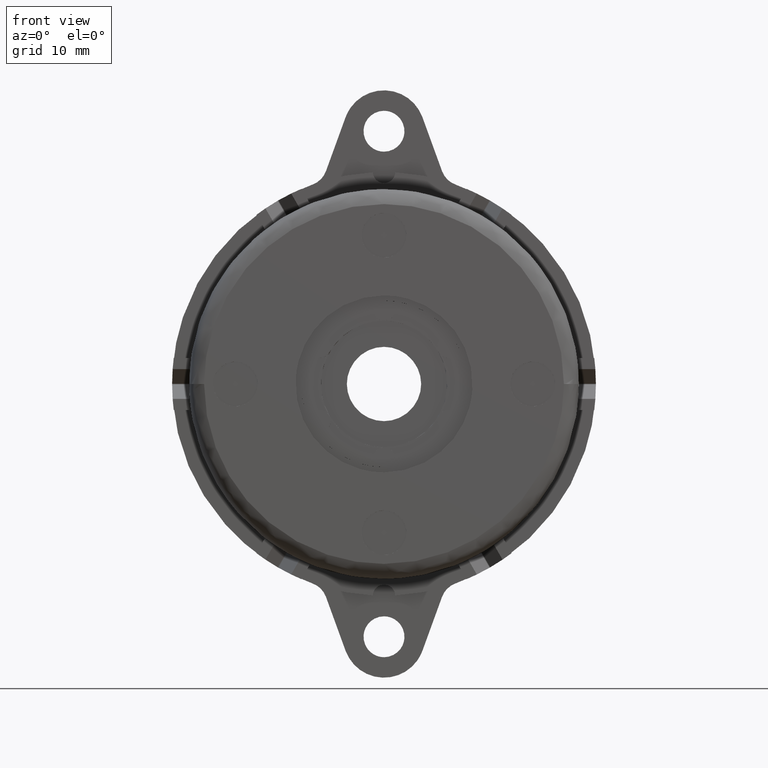
[diagram: clean part render]
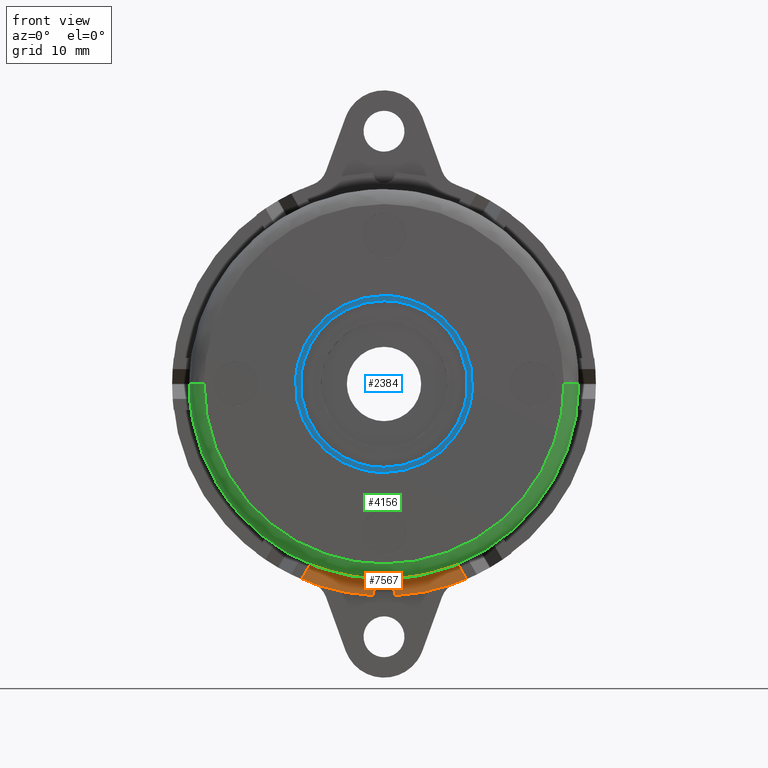
[diagram: same view with three faces highlighted in distinct colors, each labeled with its STEP entity id]
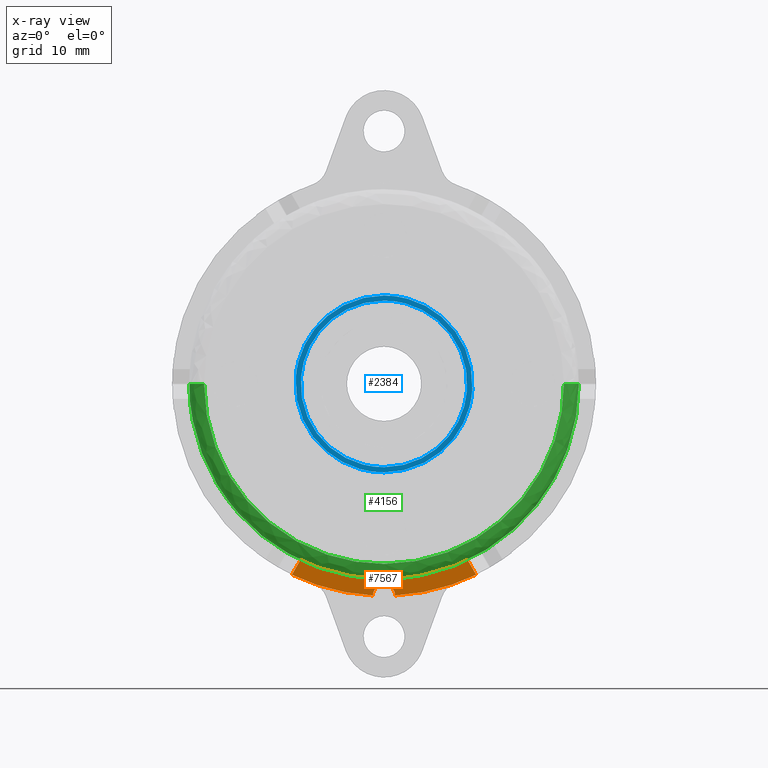
[diagram: x-ray of the same camera — body ghosted, the three highlighted faces saturated]
A machine part, front view with three faces highlighted in distinct colors.
The next image is the same camera in x-ray (body ghosted, the three faces saturated) — at least one of them is partly hidden behind the body in this view.
Their STEP definitions:

[orange] entity #7567 — the highlighted face is a freeform B-spline surface patch.
#4355=CARTESIAN_POINT('',(1.499480519464934,-2.600010000000000,-28.460526315789451));
#4356=VERTEX_POINT('',#4355);
#4362=CARTESIAN_POINT('',(-1.499480519464946,-2.600010000000000,-28.460526315789451));
#4363=VERTEX_POINT('',#4362);
#4364=CARTESIAN_POINT('',(1.499480519464934,-2.600010000000000,-28.460526315789451));
#4365=CARTESIAN_POINT('',(1.496639312021033,-2.600010000000003,-28.351978449641631));
#4366=CARTESIAN_POINT('',(1.465606769445489,-2.600009999999994,-28.123463027306421));
#4367=CARTESIAN_POINT('',(1.357394332335425,-2.600010000000000,-27.839539706699568));
#4368=CARTESIAN_POINT('',(1.191033898370668,-2.600010000000006,-27.572561642185690));
#4369=CARTESIAN_POINT('',(0.959007181719689,-2.600009999999995,-27.323572592889160));
#4370=CARTESIAN_POINT('',(0.648120216077521,-2.600010000000015,-27.130811368646398));
#4371=CARTESIAN_POINT('',(0.325222958896232,-2.600009999999973,-27.026113534350539));
#4372=CARTESIAN_POINT('',(0.024379741314766,-2.600010000000040,-26.989627696928359));
#4373=CARTESIAN_POINT('',(-0.290056057325672,-2.600009999999972,-27.016248192938310));
#4374=CARTESIAN_POINT('',(-0.649358874468094,-2.600010000000012,-27.127979699041319));
#4375=CARTESIAN_POINT('',(-0.979067970145927,-2.600010000000008,-27.337949791808420));
#4376=CARTESIAN_POINT('',(-1.229198908710485,-2.600009999999985,-27.619757487262280));
#4377=CARTESIAN_POINT('',(-1.430089755960258,-2.600010000000020,-27.979672265821289));
#4378=CARTESIAN_POINT('',(-1.494603640321683,-2.600009999999974,-28.267491283354040));
#4379=CARTESIAN_POINT('',(-1.499480519464946,-2.600010000000000,-28.460526315789451));
#4380=B_SPLINE_CURVE_WITH_KNOTS('',3,(#4364,#4365,#4366,#4367,#4368,#4369,#4370,#4371,#4372,#4373,#4374,#4375,#4376,#4377,#4378,#4379),.UNSPECIFIED.,.F.,.U.,(4,1,1,1,1,1,1,1,1,1,1,1,1,4),(0.000000207083993,0.325762080975194,0.687776833089852,0.904985714570897,1.266991606041070,1.701412286126422,1.990987871851397,2.280591120978121,2.606359424416873,2.932139699561272,3.402757491185001,3.764774035838587,4.054356986116648,4.633544906061252),.UNSPECIFIED.);
#4381=EDGE_CURVE('',#4356,#4363,#4380,.T.);
#7502=CARTESIAN_POINT('',(-13.630631460912140,-2.600010000000000,-28.699969736847059));
#7503=CARTESIAN_POINT('',(-13.630631460912140,-2.600010000000000,-23.427420496913509));
#7504=CARTESIAN_POINT('',(13.630632125703571,-2.600010000000000,-28.699969736847059));
#7505=CARTESIAN_POINT('',(13.630632125703571,-2.600010000000000,-23.427420496913509));
#7506=B_SPLINE_SURFACE_WITH_KNOTS('',1,1,((#7502,#7504),(#7503,#7505)),.UNSPECIFIED.,.F.,.F.,.U.,(2,2),(2,2),(0.0,5.272549239933554),(0.0,27.261263586615708),.UNSPECIFIED.);
#7507=ORIENTED_EDGE('',*,*,#4381,.F.);
#7508=CARTESIAN_POINT('',(12.392609790845301,-2.600010000000000,-25.664629796119151));
#7509=VERTEX_POINT('',#7508);
#7510=CARTESIAN_POINT('',(1.499480519464935,-2.600010000000000,-28.460526315789469));
#7511=CARTESIAN_POINT('',(7.227393648221824,-2.600010000000000,-28.158743627076749));
#7512=CARTESIAN_POINT('',(12.392609790845290,-2.600010000000000,-25.664629796119129));
#7520=(BOUNDED_CURVE()B_SPLINE_CURVE(2,(#7510,#7511,#7512),.UNSPECIFIED.,.F.,.U.)CURVE()GEOMETRIC_REPRESENTATION_ITEM()QUASI_UNIFORM_CURVE()RATIONAL_B_SPLINE_CURVE((1.0,0.980342760978141,1.0))REPRESENTATION_ITEM(''));
#7521=EDGE_CURVE('',#4356,#7509,#7520,.T.);
#7522=ORIENTED_EDGE('',*,*,#7521,.T.);
#7523=CARTESIAN_POINT('',(11.239199197552059,-2.600010000000000,-23.666864046547150));
#7524=VERTEX_POINT('',#7523);
#7525=CARTESIAN_POINT('',(11.239199197552059,-2.600010000000000,-23.666864046547150));
#7526=CARTESIAN_POINT('',(12.392609790845301,-2.600010000000000,-25.664629796119151));
#7527=QUASI_UNIFORM_CURVE('',1,(#7525,#7526),.UNSPECIFIED.,.F.,.U.);
#7528=EDGE_CURVE('',#7524,#7509,#7527,.T.);
#7529=ORIENTED_EDGE('',*,*,#7528,.F.);
#7530=CARTESIAN_POINT('',(-11.239199197552059,-2.600010000000000,-23.666864046547150));
#7531=VERTEX_POINT('',#7530);
#7532=CARTESIAN_POINT('',(-11.239199197552059,-2.600010000000000,-23.666864046547150));
#7533=CARTESIAN_POINT('',(1.859624E-015,-2.600010000000000,-29.004267157177072));
#7534=CARTESIAN_POINT('',(11.239199197552059,-2.600010000000000,-23.666864046547150));
#7542=(BOUNDED_CURVE()B_SPLINE_CURVE(2,(#7532,#7533,#7534),.UNSPECIFIED.,.F.,.U.)CURVE()GEOMETRIC_REPRESENTATION_ITEM()QUASI_UNIFORM_CURVE()RATIONAL_B_SPLINE_CURVE((1.0,0.903315387146251,1.0))REPRESENTATION_ITEM(''));
#7543=EDGE_CURVE('',#7531,#7524,#7542,.T.);
#7544=ORIENTED_EDGE('',*,*,#7543,.F.);
#7545=CARTESIAN_POINT('',(-12.392609790845260,-2.600010000000000,-25.664629796119151));
#7546=VERTEX_POINT('',#7545);
#7547=CARTESIAN_POINT('',(-12.392609790845260,-2.600010000000000,-25.664629796119151));
#7548=CARTESIAN_POINT('',(-11.239199197552059,-2.600010000000000,-23.666864046547150));
#7549=QUASI_UNIFORM_CURVE('',1,(#7547,#7548),.UNSPECIFIED.,.F.,.U.);
#7550=EDGE_CURVE('',#7546,#7531,#7549,.T.);
#7551=ORIENTED_EDGE('',*,*,#7550,.F.);
#7552=CARTESIAN_POINT('',(-12.392609790845251,-2.600010000000000,-25.664629796119140));
#7553=CARTESIAN_POINT('',(-7.227393648221802,-2.600009999999999,-28.158743627076742));
#7554=CARTESIAN_POINT('',(-1.499480519464947,-2.600010000000000,-28.460526315789469));
#7562=(BOUNDED_CURVE()B_SPLINE_CURVE(2,(#7552,#7553,#7554),.UNSPECIFIED.,.F.,.U.)CURVE()GEOMETRIC_REPRESENTATION_ITEM()QUASI_UNIFORM_CURVE()RATIONAL_B_SPLINE_CURVE((1.0,0.980342760978141,1.0))REPRESENTATION_ITEM(''));
#7563=EDGE_CURVE('',#7546,#4363,#7562,.T.);
#7564=ORIENTED_EDGE('',*,*,#7563,.T.);
#7565=EDGE_LOOP('',(#7507,#7522,#7529,#7544,#7551,#7564));
#7566=FACE_OUTER_BOUND('',#7565,.T.);
#7567=ADVANCED_FACE('',(#7566),#7506,.F.);

[blue] entity #2384 — the highlighted face is a freeform B-spline surface patch.
#2083=CARTESIAN_POINT('',(-11.165474137806060,-13.0,0.878741872215033));
#2084=VERTEX_POINT('',#2083);
#2090=CARTESIAN_POINT('',(0.0,-13.0,-11.199999999999999));
#2091=VERTEX_POINT('',#2090);
#2092=CARTESIAN_POINT('',(-11.165474137806058,-12.999999999999998,0.878741872215030));
#2093=CARTESIAN_POINT('',(-11.199999999999996,-13.000000000000002,0.440049198517630));
#2094=CARTESIAN_POINT('',(-11.199999999999999,-13.0,0.0));
#2095=CARTESIAN_POINT('',(-11.199999999999999,-13.0,-11.199999999999999));
#2096=CARTESIAN_POINT('',(0.0,-13.0,-11.199999999999999));
#2104=(BOUNDED_CURVE()B_SPLINE_CURVE(2,(#2092,#2093,#2094,#2095,#2096),.UNSPECIFIED.,.F.,.U.)B_SPLINE_CURVE_WITH_KNOTS((3,2,3),(0.736331300631797,0.750000000000000,1.0),.UNSPECIFIED.)CURVE()GEOMETRIC_REPRESENTATION_ITEM()RATIONAL_B_SPLINE_CURVE((0.969723356169792,0.983986122580215,1.0,0.707106781186547,1.0))REPRESENTATION_ITEM(''));
#2105=EDGE_CURVE('',#2084,#2091,#2104,.T.);
#2107=CARTESIAN_POINT('',(11.165474137806060,-13.0,-0.878741872215034));
#2108=VERTEX_POINT('',#2107);
#2109=CARTESIAN_POINT('',(0.0,-13.0,-11.199999999999999));
#2110=CARTESIAN_POINT('',(10.353173506513160,-13.0,-11.199999999999999));
#2111=CARTESIAN_POINT('',(11.165474137806061,-13.000000000000002,-0.878741872215034));
#2119=(BOUNDED_CURVE()B_SPLINE_CURVE(2,(#2109,#2110,#2111),.UNSPECIFIED.,.F.,.U.)B_SPLINE_CURVE_WITH_KNOTS((3,3),(0.0,0.236331300631797),.UNSPECIFIED.)CURVE()GEOMETRIC_REPRESENTATION_ITEM()RATIONAL_B_SPLINE_CURVE((1.0,0.723120658606333,0.969723356169791))REPRESENTATION_ITEM(''));
#2120=EDGE_CURVE('',#2091,#2108,#2119,.T.);
#2150=CARTESIAN_POINT('',(0.0,-13.0,11.199999999999999));
#2151=VERTEX_POINT('',#2150);
#2152=CARTESIAN_POINT('',(11.165474137806061,-13.000000000000002,-0.878741872215034));
#2153=CARTESIAN_POINT('',(11.199999999999998,-13.000000000000002,-0.440049198517632));
#2154=CARTESIAN_POINT('',(11.199999999999999,-13.0,0.0));
#2155=CARTESIAN_POINT('',(11.199999999999999,-13.0,11.199999999999999));
#2156=CARTESIAN_POINT('',(0.0,-13.0,11.199999999999999));
#2164=(BOUNDED_CURVE()B_SPLINE_CURVE(2,(#2152,#2153,#2154,#2155,#2156),.UNSPECIFIED.,.F.,.U.)B_SPLINE_CURVE_WITH_KNOTS((3,2,3),(0.236331300631797,0.250000000000000,0.500000000000000),.UNSPECIFIED.)CURVE()GEOMETRIC_REPRESENTATION_ITEM()RATIONAL_B_SPLINE_CURVE((0.969723356169791,0.983986122580214,1.0,0.707106781186547,1.0))REPRESENTATION_ITEM(''));
#2165=EDGE_CURVE('',#2108,#2151,#2164,.T.);
#2167=CARTESIAN_POINT('',(0.0,-13.0,11.199999999999999));
#2168=CARTESIAN_POINT('',(-10.353173506513164,-13.000000000000002,11.199999999999998));
#2169=CARTESIAN_POINT('',(-11.165474137806058,-12.999999999999998,0.878741872215030));
#2177=(BOUNDED_CURVE()B_SPLINE_CURVE(2,(#2167,#2168,#2169),.UNSPECIFIED.,.F.,.U.)B_SPLINE_CURVE_WITH_KNOTS((3,3),(0.500000000000000,0.736331300631797),.UNSPECIFIED.)CURVE()GEOMETRIC_REPRESENTATION_ITEM()RATIONAL_B_SPLINE_CURVE((1.0,0.723120658606333,0.969723356169792))REPRESENTATION_ITEM(''));
#2178=EDGE_CURVE('',#2151,#2084,#2177,.T.);
#2307=CARTESIAN_POINT('',(-13.088517108979330,-13.0,-13.088809953870980));
#2308=CARTESIAN_POINT('',(13.088516683402171,-13.0,-13.088809953870980));
#2309=CARTESIAN_POINT('',(-13.088517108979330,-13.0,13.088810592236729));
#2310=CARTESIAN_POINT('',(13.088516683402171,-13.0,13.088810592236729));
#2311=B_SPLINE_SURFACE_WITH_KNOTS('',1,1,((#2307,#2309),(#2308,#2310)),.UNSPECIFIED.,.F.,.F.,.U.,(2,2),(2,2),(0.0,26.177033792381501),(0.0,26.177620546107711),.UNSPECIFIED.);
#2312=CARTESIAN_POINT('',(0.0,-13.0,-11.900000000000000));
#2313=VERTEX_POINT('',#2312);
#2314=CARTESIAN_POINT('',(11.877804947614489,-13.0,-0.726463781776172));
#2315=VERTEX_POINT('',#2314);
#2316=CARTESIAN_POINT('',(0.0,-13.0,-11.900000000000000));
#2317=CARTESIAN_POINT('',(11.194415263017426,-13.0,-11.899999999999753));
#2318=CARTESIAN_POINT('',(11.877804947614488,-13.000000000000004,-0.726463781776172));
#2326=(BOUNDED_CURVE()B_SPLINE_CURVE(2,(#2316,#2317,#2318),.UNSPECIFIED.,.F.,.U.)B_SPLINE_CURVE_WITH_KNOTS((3,3),(0.0,0.239333163274216),.UNSPECIFIED.)CURVE()GEOMETRIC_REPRESENTATION_ITEM()RATIONAL_B_SPLINE_CURVE((1.0,0.719603757759237,0.976072472523955))REPRESENTATION_ITEM(''));
#2327=EDGE_CURVE('',#2313,#2315,#2326,.T.);
#2328=ORIENTED_EDGE('',*,*,#2327,.T.);
#2329=CARTESIAN_POINT('',(0.0,-13.0,11.900000000000000));
#2330=VERTEX_POINT('',#2329);
#2331=CARTESIAN_POINT('',(11.877804947614488,-13.000000000000004,-0.726463781776172));
#2332=CARTESIAN_POINT('',(11.899999999992049,-12.999999999999996,-0.363570944507858));
#2333=CARTESIAN_POINT('',(11.899999999992181,-13.0,4.783251E-013));
#2334=CARTESIAN_POINT('',(11.899999999996206,-13.0,11.900000000000231));
#2335=CARTESIAN_POINT('',(0.0,-13.0,11.900000000000000));
#2343=(BOUNDED_CURVE()B_SPLINE_CURVE(2,(#2331,#2332,#2333,#2334,#2335),.UNSPECIFIED.,.F.,.U.)B_SPLINE_CURVE_WITH_KNOTS((3,2,3),(0.239333163274216,0.250000000000000,0.500000000000000),.UNSPECIFIED.)CURVE()GEOMETRIC_REPRESENTATION_ITEM()RATIONAL_B_SPLINE_CURVE((0.976072472523955,0.987503023427310,1.0,0.707106781186547,1.0))REPRESENTATION_ITEM(''));
#2344=EDGE_CURVE('',#2315,#2330,#2343,.T.);
#2345=ORIENTED_EDGE('',*,*,#2344,.T.);
#2346=CARTESIAN_POINT('',(-11.877804947614489,-13.0,0.726463781776169));
#2347=VERTEX_POINT('',#2346);
#2348=CARTESIAN_POINT('',(0.0,-13.0,11.900000000000000));
#2349=CARTESIAN_POINT('',(-11.194415263017426,-13.0,11.899999999999752));
#2350=CARTESIAN_POINT('',(-11.877804947614488,-13.000000000000004,0.726463781776169));
#2358=(BOUNDED_CURVE()B_SPLINE_CURVE(2,(#2348,#2349,#2350),.UNSPECIFIED.,.F.,.U.)B_SPLINE_CURVE_WITH_KNOTS((3,3),(0.500000000000000,0.739333163274216),.UNSPECIFIED.)CURVE()GEOMETRIC_REPRESENTATION_ITEM()RATIONAL_B_SPLINE_CURVE((1.0,0.719603757759237,0.976072472523955))REPRESENTATION_ITEM(''));
#2359=EDGE_CURVE('',#2330,#2347,#2358,.T.);
#2360=ORIENTED_EDGE('',*,*,#2359,.T.);
#2361=CARTESIAN_POINT('',(-11.877804947614488,-13.000000000000004,0.726463781776169));
#2362=CARTESIAN_POINT('',(-11.899999999992049,-12.999999999999996,0.363570944507855));
#2363=CARTESIAN_POINT('',(-11.899999999992181,-13.0,-4.815571E-013));
#2364=CARTESIAN_POINT('',(-11.899999999996206,-13.0,-11.900000000000233));
#2365=CARTESIAN_POINT('',(0.0,-13.0,-11.900000000000000));
#2373=(BOUNDED_CURVE()B_SPLINE_CURVE(2,(#2361,#2362,#2363,#2364,#2365),.UNSPECIFIED.,.F.,.U.)B_SPLINE_CURVE_WITH_KNOTS((3,2,3),(0.739333163274216,0.750000000000000,1.0),.UNSPECIFIED.)CURVE()GEOMETRIC_REPRESENTATION_ITEM()RATIONAL_B_SPLINE_CURVE((0.976072472523955,0.987503023427310,1.0,0.707106781186547,1.0))REPRESENTATION_ITEM(''));
#2374=EDGE_CURVE('',#2347,#2313,#2373,.T.);
#2375=ORIENTED_EDGE('',*,*,#2374,.T.);
#2376=EDGE_LOOP('',(#2328,#2345,#2360,#2375));
#2377=FACE_OUTER_BOUND('',#2376,.T.);
#2378=ORIENTED_EDGE('',*,*,#2178,.F.);
#2379=ORIENTED_EDGE('',*,*,#2165,.F.);
#2380=ORIENTED_EDGE('',*,*,#2120,.F.);
#2381=ORIENTED_EDGE('',*,*,#2105,.F.);
#2382=EDGE_LOOP('',(#2378,#2379,#2380,#2381));
#2383=FACE_BOUND('',#2382,.T.);
#2384=ADVANCED_FACE('',(#2377,#2383),#2311,.T.);

[green] entity #4156 — the highlighted face is a freeform B-spline surface patch.
#3880=CARTESIAN_POINT('',(-24.200000000614182,-13.800000000000001,-1.770490E-015));
#3881=VERTEX_POINT('',#3880);
#3895=CARTESIAN_POINT('',(0.0,-13.800000000000001,-24.199999999999999));
#3896=VERTEX_POINT('',#3895);
#3897=CARTESIAN_POINT('',(-24.200000000614182,-13.800000000000001,-1.770490E-015));
#3898=CARTESIAN_POINT('',(-24.200000000307082,-13.799999999999999,-24.199999999999996));
#3899=CARTESIAN_POINT('',(0.0,-13.800000000000001,-24.199999999999999));
#3907=(BOUNDED_CURVE()B_SPLINE_CURVE(2,(#3897,#3898,#3899),.UNSPECIFIED.,.F.,.U.)B_SPLINE_CURVE_WITH_KNOTS((3,3),(0.250000000000000,0.500000000000000),.UNSPECIFIED.)CURVE()GEOMETRIC_REPRESENTATION_ITEM()RATIONAL_B_SPLINE_CURVE((1.0,0.707106781186548,1.0))REPRESENTATION_ITEM(''));
#3908=EDGE_CURVE('',#3881,#3896,#3907,.T.);
#3910=CARTESIAN_POINT('',(24.200000000614182,-13.800000000000001,2.634884E-016));
#3911=VERTEX_POINT('',#3910);
#3912=CARTESIAN_POINT('',(0.0,-13.800000000000001,-24.199999999999999));
#3913=CARTESIAN_POINT('',(24.200000000307082,-13.799999999999999,-24.199999999999996));
#3914=CARTESIAN_POINT('',(24.200000000614182,-13.800000000000001,2.634884E-016));
#3922=(BOUNDED_CURVE()B_SPLINE_CURVE(2,(#3912,#3913,#3914),.UNSPECIFIED.,.F.,.U.)B_SPLINE_CURVE_WITH_KNOTS((3,3),(0.500000000000000,0.750000000000000),.UNSPECIFIED.)CURVE()GEOMETRIC_REPRESENTATION_ITEM()RATIONAL_B_SPLINE_CURVE((1.0,0.707106781186548,1.0))REPRESENTATION_ITEM(''));
#3923=EDGE_CURVE('',#3896,#3911,#3922,.T.);
#4002=CARTESIAN_POINT('',(26.199999999999999,-11.800000000098020,5.284502E-015));
#4003=VERTEX_POINT('',#4002);
#4004=CARTESIAN_POINT('',(24.200000000614178,-13.800000000000001,5.269768E-016));
#4005=CARTESIAN_POINT('',(26.199999999901983,-13.799999999385816,2.816352E-015));
#4006=CARTESIAN_POINT('',(26.199999999999989,-11.800000000098017,3.463576E-015));
#4014=(BOUNDED_CURVE()B_SPLINE_CURVE(2,(#4004,#4005,#4006),.UNSPECIFIED.,.F.,.U.)B_SPLINE_CURVE_WITH_KNOTS((3,3),(-1.736413120754341,-0.276558718065689),.UNSPECIFIED.)CURVE()GEOMETRIC_REPRESENTATION_ITEM()RATIONAL_B_SPLINE_CURVE((0.888510408948525,0.626638727302599,0.883897567120881))REPRESENTATION_ITEM(''));
#4015=EDGE_CURVE('',#3911,#4003,#4014,.T.);
#4047=CARTESIAN_POINT('',(-26.199999999999999,-11.800000000098020,-1.770216E-015));
#4048=VERTEX_POINT('',#4047);
#4062=CARTESIAN_POINT('',(-24.200000000614171,-13.800000000000002,-3.540981E-015));
#4063=CARTESIAN_POINT('',(-26.199999999901966,-13.799999999385818,-3.497002E-015));
#4064=CARTESIAN_POINT('',(-26.199999999999999,-11.800000000098025,-3.540432E-015));
#4072=(BOUNDED_CURVE()B_SPLINE_CURVE(2,(#4062,#4063,#4064),.UNSPECIFIED.,.F.,.U.)B_SPLINE_CURVE_WITH_KNOTS((3,3),(-1.736413120754343,-0.276558718065691),.UNSPECIFIED.)CURVE()GEOMETRIC_REPRESENTATION_ITEM()RATIONAL_B_SPLINE_CURVE((0.888510408948525,0.626638727302599,0.883897567120880))REPRESENTATION_ITEM(''));
#4073=EDGE_CURVE('',#3881,#4048,#4072,.T.);
#4078=CARTESIAN_POINT('',(24.061298849070688,-13.795184700906377,0.672675420448867));
#4079=CARTESIAN_POINT('',(24.061298849070678,-13.795184700906381,0.338296456843512));
#4080=CARTESIAN_POINT('',(24.061298849070685,-13.795184700906379,-24.061298849070667));
#4081=CARTESIAN_POINT('',(2.946562E-015,-13.795184700906375,-24.061298849070685));
#4082=CARTESIAN_POINT('',(-24.061298849070667,-13.795184700906379,-24.061298849070685));
#4083=CARTESIAN_POINT('',(-24.061298849070674,-13.795184700906379,0.338296456843513));
#4084=CARTESIAN_POINT('',(-24.061298849070681,-13.795184700906372,0.672675420448876));
#4085=CARTESIAN_POINT('',(26.355478543839929,-13.954671370966850,0.736813200393517));
#4086=CARTESIAN_POINT('',(26.355478543839933,-13.954671370966851,0.370552108002291));
#4087=CARTESIAN_POINT('',(26.355478543839943,-13.954671370966851,-26.355478543839919));
#4088=CARTESIAN_POINT('',(3.227509E-015,-13.954671370966851,-26.355478543839933));
#4089=CARTESIAN_POINT('',(-26.355478543839919,-13.954671370966851,-26.355478543839943));
#4090=CARTESIAN_POINT('',(-26.355478543839926,-13.954671370966851,0.370552108002293));
#4091=CARTESIAN_POINT('',(-26.355478543839926,-13.954671370966851,0.736813200393527));
#4092=CARTESIAN_POINT('',(26.195132611118510,-11.660551572072686,0.732330451212468));
#4093=CARTESIAN_POINT('',(26.195132611118503,-11.660551572072681,0.368297680207300));
#4094=CARTESIAN_POINT('',(26.195132611118506,-11.660551572072682,-26.195132611118506));
#4095=CARTESIAN_POINT('',(3.207873E-015,-11.660551572072679,-26.195132611118510));
#4096=CARTESIAN_POINT('',(-26.195132611118506,-11.660551572072682,-26.195132611118506));
#4097=CARTESIAN_POINT('',(-26.195132611118503,-11.660551572072679,0.368297680207302));
#4098=CARTESIAN_POINT('',(-26.195132611118503,-11.660551572072684,0.732330451212478));
#4106=(BOUNDED_SURFACE()B_SPLINE_SURFACE(2,2,((#4078,#4085,#4092),(#4079,#4086,#4093),(#4080,#4087,#4094),(#4081,#4088,#4095),(#4082,#4089,#4096),(#4083,#4090,#4097),(#4084,#4091,#4098)),.UNSPECIFIED.,.F.,.F.,.U.)B_SPLINE_SURFACE_WITH_KNOTS((3,1,2,1,3),(3,3),(0.0,0.868030335654944,44.269547118403068,87.671063901151200,88.539094236806150),(0.0,3.645454353994036),.UNSPECIFIED.)GEOMETRIC_REPRESENTATION_ITEM()RATIONAL_B_SPLINE_SURFACE(((0.926697838400259,0.606435486919035,0.921564728292852),(0.921332230155912,0.602924207283492,0.916228840909793),(0.647686209694202,0.423848945870745,0.644098584373797),(0.915966621911565,0.599412927647948,0.910892953526734),(0.647686209694202,0.423848945870745,0.644098584373797),(0.921332230155912,0.602924207283492,0.916228840909793),(0.926697838400259,0.606435486919036,0.921564728292852)))REPRESENTATION_ITEM('')SURFACE());
#4107=ORIENTED_EDGE('',*,*,#3908,.F.);
#4108=ORIENTED_EDGE('',*,*,#4073,.T.);
#4109=CARTESIAN_POINT('',(-22.434830887205919,-11.800000000069669,-13.532123375966020));
#4110=VERTEX_POINT('',#4109);
#4111=CARTESIAN_POINT('',(-22.434830887205926,-11.800000000069669,-13.532123375966023));
#4112=CARTESIAN_POINT('',(-26.199999999999136,-11.800000000086385,-7.289870777438365));
#4113=CARTESIAN_POINT('',(-26.199999999999999,-11.800000000098020,-1.770216E-015));
#4121=(BOUNDED_CURVE()B_SPLINE_CURVE(2,(#4111,#4112,#4113),.UNSPECIFIED.,.F.,.U.)B_SPLINE_CURVE_WITH_KNOTS((3,3),(0.661793393350524,0.750000000000000),.UNSPECIFIED.)CURVE()GEOMETRIC_REPRESENTATION_ITEM()RATIONAL_B_SPLINE_CURVE((0.866241560394162,0.896659532231292,1.0))REPRESENTATION_ITEM(''));
#4122=EDGE_CURVE('',#4110,#4048,#4121,.T.);
#4123=ORIENTED_EDGE('',*,*,#4122,.F.);
#4124=CARTESIAN_POINT('',(0.0,-11.800000000000001,-26.199999999999999));
#4125=VERTEX_POINT('',#4124);
#4126=CARTESIAN_POINT('',(0.0,-11.800000000000001,-26.199999999999999));
#4127=CARTESIAN_POINT('',(-14.793887648107598,-11.800000000029677,-26.199999999999484));
#4128=CARTESIAN_POINT('',(-22.434830887205926,-11.800000000069669,-13.532123375966023));
#4136=(BOUNDED_CURVE()B_SPLINE_CURVE(2,(#4126,#4127,#4128),.UNSPECIFIED.,.F.,.U.)B_SPLINE_CURVE_WITH_KNOTS((3,3),(0.500000000000000,0.661793393350524),.UNSPECIFIED.)CURVE()GEOMETRIC_REPRESENTATION_ITEM()RATIONAL_B_SPLINE_CURVE((1.0,0.810447248955256,0.866241560394162))REPRESENTATION_ITEM(''));
#4137=EDGE_CURVE('',#4125,#4110,#4136,.T.);
#4138=ORIENTED_EDGE('',*,*,#4137,.F.);
#4139=CARTESIAN_POINT('',(26.199999999999996,-11.800000000098011,5.284502E-015));
#4140=CARTESIAN_POINT('',(26.199999999999999,-11.800000000049007,-26.199999999999999));
#4141=CARTESIAN_POINT('',(0.0,-11.800000000000001,-26.199999999999999));
#4149=(BOUNDED_CURVE()B_SPLINE_CURVE(2,(#4139,#4140,#4141),.UNSPECIFIED.,.F.,.U.)B_SPLINE_CURVE_WITH_KNOTS((3,3),(0.250000000000000,0.500000000000000),.UNSPECIFIED.)CURVE()GEOMETRIC_REPRESENTATION_ITEM()RATIONAL_B_SPLINE_CURVE((1.000000000000000,0.707106781186547,1.0))REPRESENTATION_ITEM(''));
#4150=EDGE_CURVE('',#4003,#4125,#4149,.T.);
#4151=ORIENTED_EDGE('',*,*,#4150,.F.);
#4152=ORIENTED_EDGE('',*,*,#4015,.F.);
#4153=ORIENTED_EDGE('',*,*,#3923,.F.);
#4154=EDGE_LOOP('',(#4107,#4108,#4123,#4138,#4151,#4152,#4153));
#4155=FACE_OUTER_BOUND('',#4154,.T.);
#4156=ADVANCED_FACE('',(#4155),#4106,.T.);